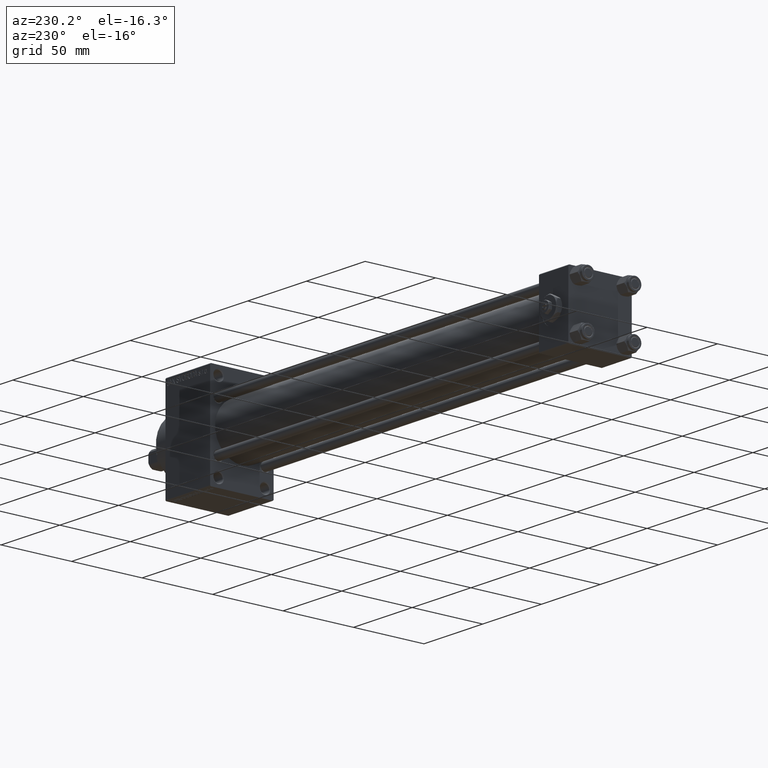
[diagram: clean part render]
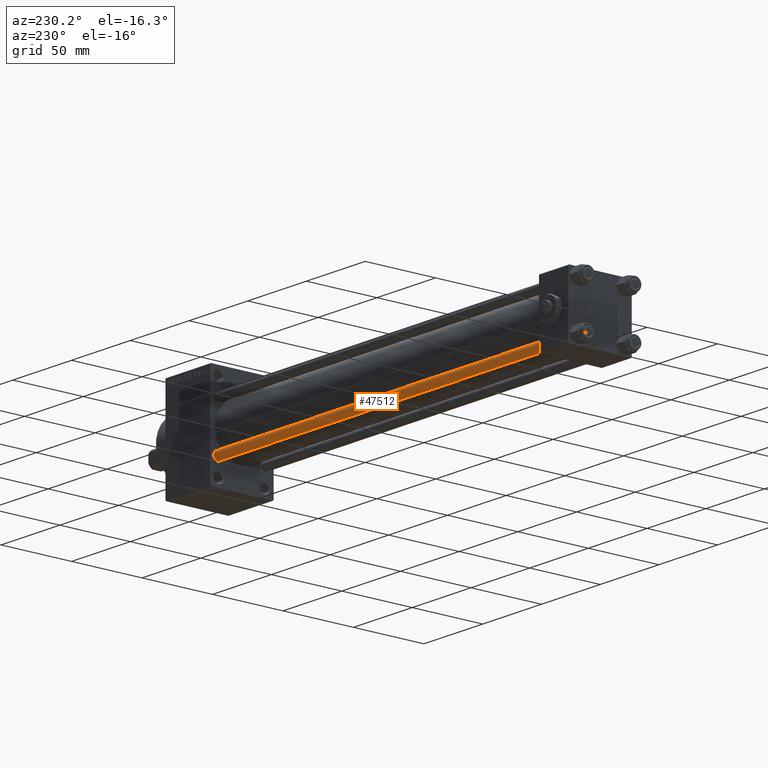
[diagram: same view with one face highlighted and labeled with its STEP entity id]
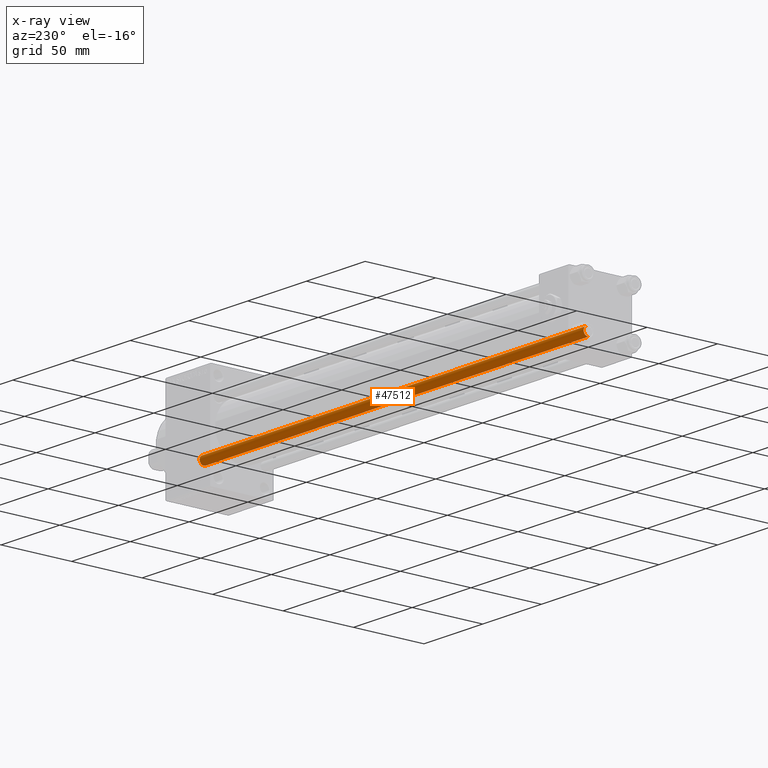
[diagram: x-ray of the same camera — body ghosted, the highlighted face saturated]
A machine part, auxiliary view. The second image highlights one B-rep face of the part: STEP entity #47512.
The next image is the same camera in x-ray: the body ghosted, the highlighted face saturated — about 0% of this face is hidden behind the body in this view.
In plain terms, the highlighted cylindrical surface (edge-blend (fillet) strip) has radius 3 mm, axis along (1, -0, 0).
Its self-contained STEP definition (entity closure, byte-faithful):
#4956 = DIRECTION ( 'NONE',  ( -0.000000000000000000, -0.000000000000000000, -1.000000000000000000 ) ) ;
#6270 = CARTESIAN_POINT ( 'NONE',  ( 0.000000000000000000, 0.000000000000000000, 0.5000000000000559552 ) ) ;
#7084 = VERTEX_POINT ( 'NONE', #17896 ) ;
#7998 = VERTEX_POINT ( 'NONE', #22503 ) ;
#8447 = DIRECTION ( 'NONE',  ( 0.000000000000000000, 0.000000000000000000, -1.000000000000000000 ) ) ;
#11629 = CIRCLE ( 'NONE', #42254, 3.000000000000000444 ) ;
#11896 = CARTESIAN_POINT ( 'NONE',  ( 0.000000000000000000, 0.000000000000000000, 327.5000000000000000 ) ) ;
#12674 = DIRECTION ( 'NONE',  ( -0.000000000000000000, -0.000000000000000000, -1.000000000000000000 ) ) ;
#12712 = EDGE_CURVE ( 'NONE', #22839, #7998, #25495, .T. ) ;
#13875 = ORIENTED_EDGE ( 'NONE', *, *, #46339, .T. ) ;
#14737 = CARTESIAN_POINT ( 'NONE',  ( 3.000000000000000444, 3.673940397442060361E-16, 327.5000000000000000 ) ) ;
#15458 = EDGE_LOOP ( 'NONE', ( #13875, #46103, #35161, #24779 ) ) ;
#15877 = LINE ( 'NONE', #20044, #36816 ) ;
#17896 = CARTESIAN_POINT ( 'NONE',  ( -3.000000000000000444, 0.000000000000000000, 0.5000000000000559552 ) ) ;
#20044 = CARTESIAN_POINT ( 'NONE',  ( -3.000000000000000444, 0.000000000000000000, 328.0000000000000000 ) ) ;
#20650 = CYLINDRICAL_SURFACE ( 'NONE', #44643, 3.000000000000000444 ) ;
#21323 = CARTESIAN_POINT ( 'NONE',  ( 3.000000000000000444, 3.673940397442060361E-16, 328.0000000000000000 ) ) ;
#22503 = CARTESIAN_POINT ( 'NONE',  ( 3.000000000000000444, 3.673940397442060361E-16, 0.5000000000000559552 ) ) ;
#22839 = VERTEX_POINT ( 'NONE', #14737 ) ;
#24222 = CIRCLE ( 'NONE', #36772, 3.000000000000000444 ) ;
#24779 = ORIENTED_EDGE ( 'NONE', *, *, #37874, .F. ) ;
#24903 = FACE_OUTER_BOUND ( 'NONE', #15458, .T. ) ;
#25495 = LINE ( 'NONE', #21323, #32984 ) ;
#26649 = DIRECTION ( 'NONE',  ( 1.000000000000000000, 0.000000000000000000, 0.000000000000000000 ) ) ;
#28626 = DIRECTION ( 'NONE',  ( -0.000000000000000000, -0.000000000000000000, 1.000000000000000000 ) ) ;
#32984 = VECTOR ( 'NONE', #44170, 1000.000000000000000 ) ;
#35161 = ORIENTED_EDGE ( 'NONE', *, *, #47862, .T. ) ;
#35628 = CARTESIAN_POINT ( 'NONE',  ( 0.000000000000000000, 0.000000000000000000, 328.0000000000000000 ) ) ;
#36772 = AXIS2_PLACEMENT_3D ( 'NONE', #6270, #28626, #39438 ) ;
#36816 = VECTOR ( 'NONE', #12674, 1000.000000000000000 ) ;
#37874 = EDGE_CURVE ( 'NONE', #38762, #7084, #15877, .T. ) ;
#38762 = VERTEX_POINT ( 'NONE', #44414 ) ;
#38838 = DIRECTION ( 'NONE',  ( -1.000000000000000000, 0.000000000000000000, 0.000000000000000000 ) ) ;
#39438 = DIRECTION ( 'NONE',  ( 1.000000000000000000, 0.000000000000000000, 0.000000000000000000 ) ) ;
#42254 = AXIS2_PLACEMENT_3D ( 'NONE', #11896, #8447, #26649 ) ;
#44170 = DIRECTION ( 'NONE',  ( -0.000000000000000000, -0.000000000000000000, -1.000000000000000000 ) ) ;
#44414 = CARTESIAN_POINT ( 'NONE',  ( -3.000000000000000444, 0.000000000000000000, 327.5000000000000000 ) ) ;
#44643 = AXIS2_PLACEMENT_3D ( 'NONE', #35628, #4956, #38838 ) ;
#46103 = ORIENTED_EDGE ( 'NONE', *, *, #12712, .T. ) ;
#46339 = EDGE_CURVE ( 'NONE', #38762, #22839, #11629, .T. ) ;
#47512 = ADVANCED_FACE ( 'NONE', ( #24903 ), #20650, .T. ) ;
#47862 = EDGE_CURVE ( 'NONE', #7998, #7084, #24222, .T. ) ;